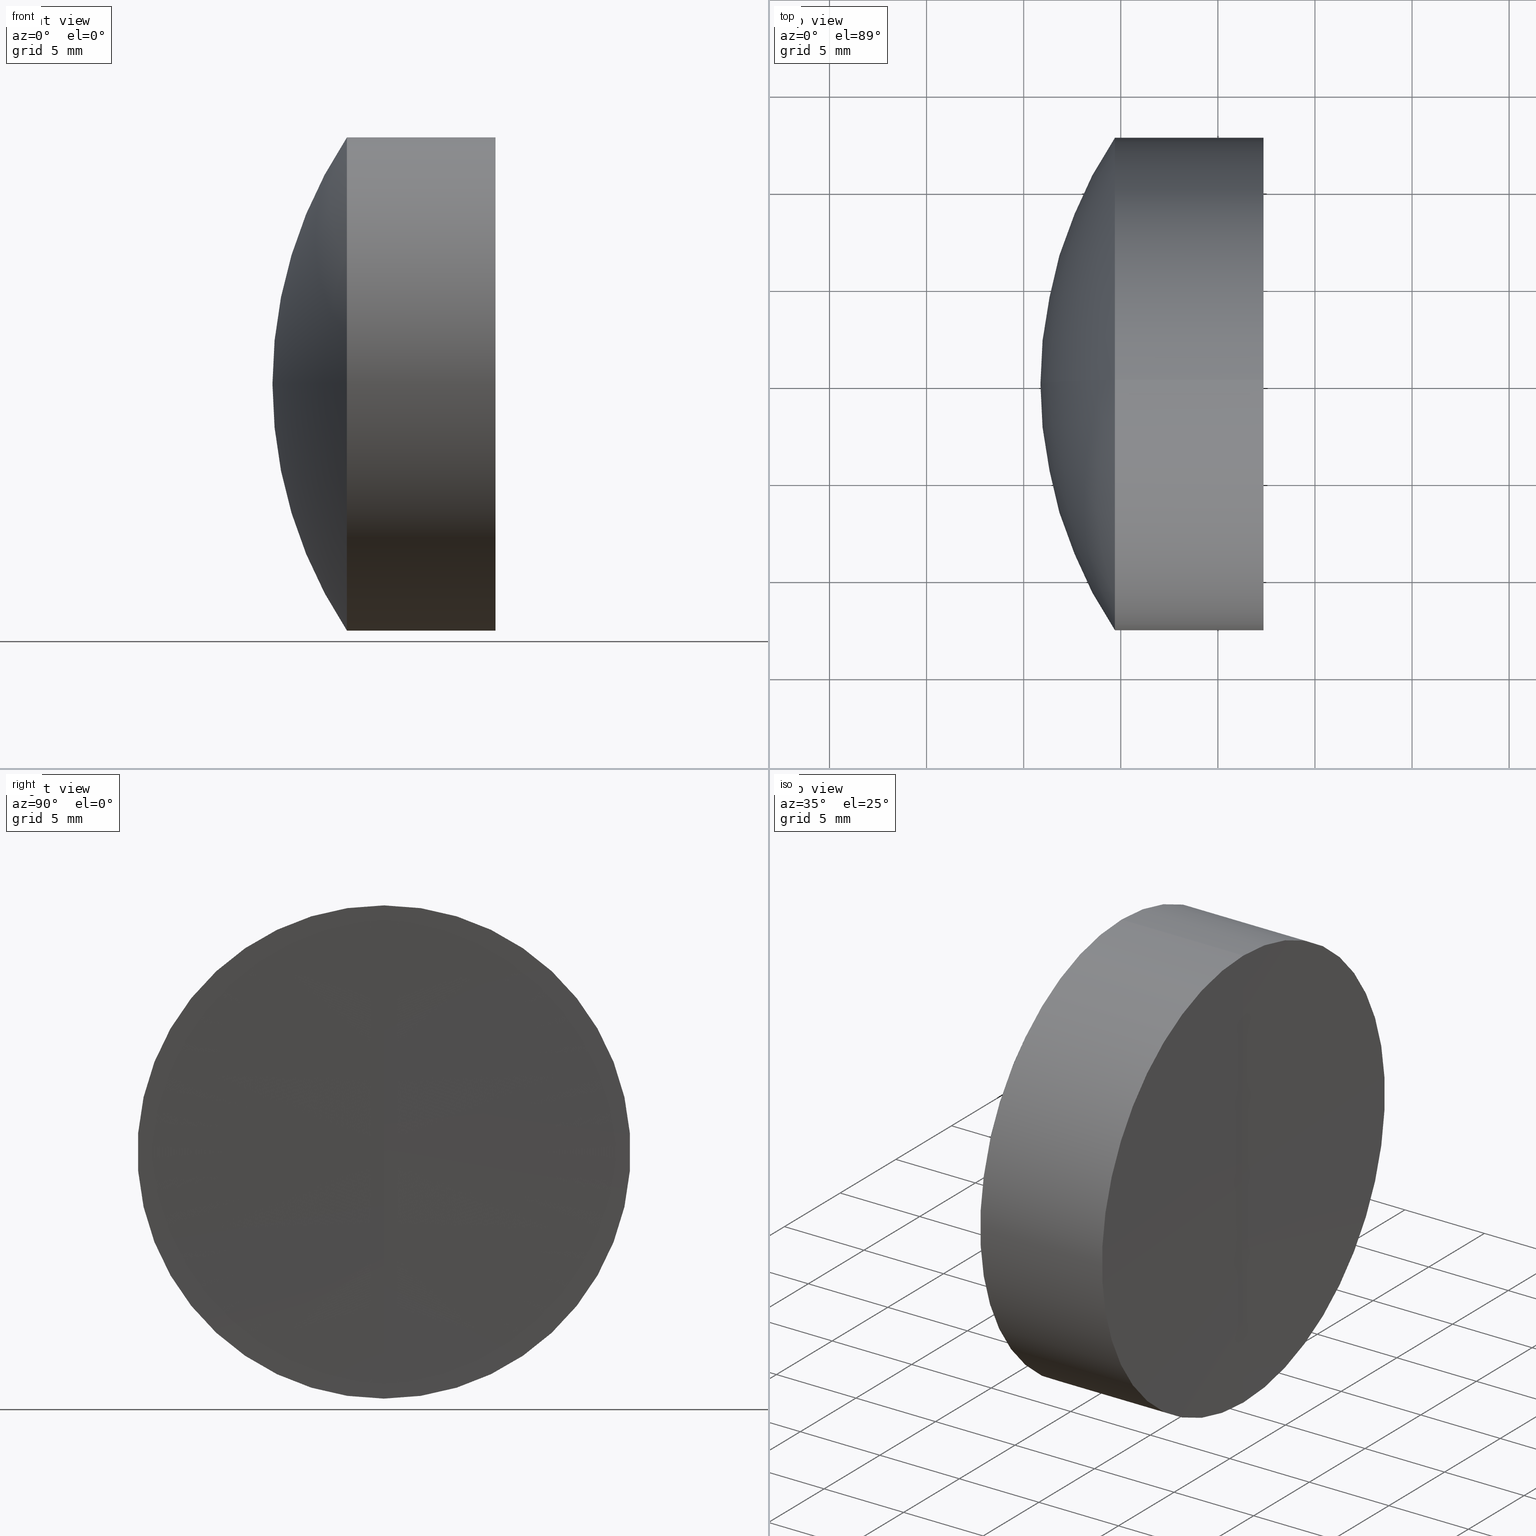
[diagram: canonical four-view strip — front | top / right | iso, engineering-drawing reading convention]
A machine part, canonical four-view strip (front | top / right | iso — engineering-drawing reading convention). The complete STEP part file that produces these views, byte-faithful:
ISO-10303-21;
HEADER;
FILE_DESCRIPTION (( 'STEP AP214' ),
    '1' );
FILE_NAME ('145161.STEP',
    '2019-06-07T04:54:16',
    ( 'user' ),
    ( '΢���й�' ),
    'SwSTEP 2.0',
    'SolidWorks 2016',
    '' );
FILE_SCHEMA (( 'AUTOMOTIVE_DESIGN' ));
ENDSEC;

DATA;
#1 = EDGE_CURVE ( 'NONE', #113, #292, #172, .T. ) ;
#2 = DIRECTION ( 'NONE',  ( -1.000000000000000000, -0.0000000000000000000, -0.0000000000000000000 ) ) ;
#3 = VERTEX_POINT ( 'NONE', #173 ) ;
#4 = EDGE_LOOP ( 'NONE', ( #311, #182, #58 ) ) ;
#5 = DIRECTION ( 'NONE',  ( 0.0000000000000000000, 0.0000000000000000000, -1.000000000000000000 ) ) ;
#6 = FACE_OUTER_BOUND ( 'NONE', #229, .T. ) ;
#7 = AXIS2_PLACEMENT_3D ( 'NONE', #257, #92, #170 ) ;
#8 = COLOUR_RGB ( '',1.000000000000000000, 1.000000000000000000, 1.000000000000000000 ) ;
#9 = CARTESIAN_POINT ( 'NONE',  ( 36.76664125472041200, 1.555301434917138400E-015, -12.69999999999999900 ) ) ;
#10 = CIRCLE ( 'NONE', #21, 12.69999999999999400 ) ;
#11 = DIRECTION ( 'NONE',  ( 0.0000000000000000000, 0.0000000000000000000, 1.000000000000000000 ) ) ;
#12 = ADVANCED_FACE ( 'NONE', ( #68 ), #208, .T. ) ;
#13 = CARTESIAN_POINT ( 'NONE',  ( 42.35364623093715200, 0.0000000000000000000, -12.69999999999743100 ) ) ;
#14 = DIRECTION ( 'NONE',  ( 0.0000000000000000000, -1.224646799147353200E-016, 1.000000000000000000 ) ) ;
#15 = CARTESIAN_POINT ( 'NONE',  ( 942.2640362142952900, 0.0000000000000000000, 0.0000000000000000000 ) ) ;
#16 = PRESENTATION_LAYER_ASSIGNMENT (  '', '', ( #43 ) ) ;
#17 = PRESENTATION_STYLE_ASSIGNMENT (( #75 ) ) ;
#18 = AXIS2_PLACEMENT_3D ( 'NONE', #181, #236, #74 ) ;
#19 = LINE ( 'NONE', #120, #314 ) ;
#20 = VERTEX_POINT ( 'NONE', #9 ) ;
#21 = AXIS2_PLACEMENT_3D ( 'NONE', #329, #95, #30 ) ;
#22 =( LENGTH_UNIT ( ) NAMED_UNIT ( * ) SI_UNIT ( .MILLI., .METRE. ) );
#23 = CARTESIAN_POINT ( 'NONE',  ( 942.2640362142952900, 0.0000000000000000000, 0.0000000000000000000 ) ) ;
#24 = AXIS2_PLACEMENT_3D ( 'NONE', #324, #153, #250 ) ;
#25 = CYLINDRICAL_SURFACE ( 'NONE', #53, 12.69999999999999900 ) ;
#26 = SURFACE_STYLE_USAGE ( .BOTH. , #239 ) ;
#27 = MECHANICAL_DESIGN_GEOMETRIC_PRESENTATION_REPRESENTATION (  '', ( #43 ), #67 ) ;
#28 =( LENGTH_UNIT ( ) NAMED_UNIT ( * ) SI_UNIT ( .MILLI., .METRE. ) );
#29 = PRESENTATION_STYLE_ASSIGNMENT (( #26 ) ) ;
#30 = DIRECTION ( 'NONE',  ( 0.0000000000000000000, 0.0000000000000000000, 1.000000000000000000 ) ) ;
#31 = ORIENTED_EDGE ( 'NONE', *, *, #117, .F. ) ;
#32 = EDGE_CURVE ( 'NONE', #310, #103, #217, .T. ) ;
#33 = DIRECTION ( 'NONE',  ( 0.0000000000000000000, 1.000000000000000000, -0.0000000000000000000 ) ) ;
#34 = DIRECTION ( 'NONE',  ( 0.0000000000000000000, -1.000000000000000000, -1.224646799147353200E-016 ) ) ;
#35 = CARTESIAN_POINT ( 'NONE',  ( 36.76664125472041200, 0.0000000000000000000, 0.0000000000000000000 ) ) ;
#36 = FACE_OUTER_BOUND ( 'NONE', #38, .T. ) ;
#37 = SURFACE_STYLE_FILL_AREA ( #54 ) ;
#38 = EDGE_LOOP ( 'NONE', ( #96, #147, #52, #42 ) ) ;
#39 = DIRECTION ( 'NONE',  ( -0.0000000000000000000, -1.000000000000000000, -0.0000000000000000000 ) ) ;
#40 = CIRCLE ( 'NONE', #190, 12.69999999999999200 ) ;
#41 = CIRCLE ( 'NONE', #206, 22.94000000000003000 ) ;
#42 = ORIENTED_EDGE ( 'NONE', *, *, #51, .F. ) ;
#43 = STYLED_ITEM ( 'NONE', ( #188 ), #146 ) ;
#44 = AXIS2_PLACEMENT_3D ( 'NONE', #326, #252, #174 ) ;
#45 = SPHERICAL_SURFACE ( 'NONE', #151, 23.66000000000000400 ) ;
#46 = EDGE_LOOP ( 'NONE', ( #274, #300, #191 ) ) ;
#47 = DIRECTION ( 'NONE',  ( 0.0000000000000000000, 0.0000000000000000000, 1.000000000000000000 ) ) ;
#48 = ORIENTED_EDGE ( 'NONE', *, *, #240, .F. ) ;
#49 = ORIENTED_EDGE ( 'NONE', *, *, #247, .T. ) ;
#50 = CARTESIAN_POINT ( 'NONE',  ( 34.70027742184829100, 0.0000000000000000000, 12.69999999999997600 ) ) ;
#51 = EDGE_CURVE ( 'NONE', #292, #316, #347, .T. ) ;
#52 = ORIENTED_EDGE ( 'NONE', *, *, #76, .F. ) ;
#53 = AXIS2_PLACEMENT_3D ( 'NONE', #83, #195, #183 ) ;
#54 = FILL_AREA_STYLE ('',( #270 ) ) ;
#55 = DIRECTION ( 'NONE',  ( 0.0000000000000000000, -1.224646799147353200E-016, 1.000000000000000000 ) ) ;
#56 = ORIENTED_EDGE ( 'NONE', *, *, #221, .F. ) ;
#57 = DIRECTION ( 'NONE',  ( 0.0000000000000000000, 1.224646799147353200E-016, -1.000000000000000000 ) ) ;
#58 = ORIENTED_EDGE ( 'NONE', *, *, #142, .F. ) ;
#59 = DIRECTION ( 'NONE',  ( 0.0000000000000000000, 0.0000000000000000000, 1.000000000000000000 ) ) ;
#60 =( GEOMETRIC_REPRESENTATION_CONTEXT ( 3 ) GLOBAL_UNCERTAINTY_ASSIGNED_CONTEXT ( ( #122 ) ) GLOBAL_UNIT_ASSIGNED_CONTEXT ( ( #185, #209, #338 ) ) REPRESENTATION_CONTEXT ( 'NONE', 'WORKASPACE' ) );
#61 = CYLINDRICAL_SURFACE ( 'NONE', #321, 12.69999999999999200 ) ;
#62 = DIRECTION ( 'NONE',  ( 0.0000000000000000000, 1.224646799147353500E-016, -1.000000000000000000 ) ) ;
#63 = CARTESIAN_POINT ( 'NONE',  ( 34.70027742184828400, 0.0000000000000000000, 0.0000000000000000000 ) ) ;
#64 = EDGE_CURVE ( 'NONE', #103, #310, #10, .T. ) ;
#65 = DIRECTION ( 'NONE',  ( 0.0000000000000000000, 0.0000000000000000000, 1.000000000000000000 ) ) ;
#66 = COLOUR_RGB ( '',1.000000000000000000, 1.000000000000000000, 1.000000000000000000 ) ;
#67 =( GEOMETRIC_REPRESENTATION_CONTEXT ( 3 ) GLOBAL_UNCERTAINTY_ASSIGNED_CONTEXT ( ( #345 ) ) GLOBAL_UNIT_ASSIGNED_CONTEXT ( ( #22, #344, #100 ) ) REPRESENTATION_CONTEXT ( 'NONE', 'WORKASPACE' ) );
#68 = FACE_OUTER_BOUND ( 'NONE', #71, .T. ) ;
#69 = ADVANCED_FACE ( 'NONE', ( #152 ), #213, .T. ) ;
#70 =( NAMED_UNIT ( * ) SI_UNIT ( $, .STERADIAN. ) SOLID_ANGLE_UNIT ( ) );
#71 = EDGE_LOOP ( 'NONE', ( #56, #285, #133, #154 ) ) ;
#72 = ADVANCED_FACE ( 'NONE', ( #85 ), #94, .F. ) ;
#73 = EDGE_LOOP ( 'NONE', ( #165, #337, #318 ) ) ;
#74 = DIRECTION ( 'NONE',  ( 0.0000000000000000000, 0.0000000000000000000, 1.000000000000000000 ) ) ;
#75 = SURFACE_STYLE_USAGE ( .BOTH. , #268 ) ;
#76 = EDGE_CURVE ( 'NONE', #316, #196, #284, .T. ) ;
#77 = LINE ( 'NONE', #327, #230 ) ;
#78 = PRODUCT_CONTEXT ( 'NONE', #242, 'mechanical' ) ;
#79 = ORIENTED_EDGE ( 'NONE', *, *, #119, .F. ) ;
#80 = ORIENTED_EDGE ( 'NONE', *, *, #264, .F. ) ;
#81 = FILL_AREA_STYLE_COLOUR ( '', #245 ) ;
#82 = CARTESIAN_POINT ( 'NONE',  ( 942.2640362142952900, 0.0000000000000000000, 0.0000000000000000000 ) ) ;
#83 = CARTESIAN_POINT ( 'NONE',  ( -0.8160621761658039000, 0.0000000000000000000, 0.0000000000000000000 ) ) ;
#84 =( NAMED_UNIT ( * ) PLANE_ANGLE_UNIT ( ) SI_UNIT ( $, .RADIAN. ) );
#85 = FACE_OUTER_BOUND ( 'NONE', #323, .T. ) ;
#86 = EDGE_CURVE ( 'NONE', #20, #196, #161, .T. ) ;
#87 = ORIENTED_EDGE ( 'NONE', *, *, #32, .T. ) ;
#88 = PRESENTATION_LAYER_ASSIGNMENT (  '', '', ( #123 ) ) ;
#89 = EDGE_LOOP ( 'NONE', ( #330, #126, #157 ) ) ;
#90 = ORIENTED_EDGE ( 'NONE', *, *, #86, .F. ) ;
#91 = CARTESIAN_POINT ( 'NONE',  ( -0.8160621761658039000, 0.0000000000000000000, 12.69999999999999900 ) ) ;
#92 = DIRECTION ( 'NONE',  ( 0.0000000000000000000, 1.000000000000000000, 0.0000000000000000000 ) ) ;
#93 = SURFACE_STYLE_FILL_AREA ( #336 ) ;
#94 = SPHERICAL_SURFACE ( 'NONE', #234, 23.66000000000000000 ) ;
#95 = DIRECTION ( 'NONE',  ( -1.000000000000000000, -0.0000000000000000000, -0.0000000000000000000 ) ) ;
#96 = ORIENTED_EDGE ( 'NONE', *, *, #105, .T. ) ;
#97 = ADVANCED_FACE ( 'NONE', ( #167 ), #296, .F. ) ;
#98 = DIRECTION ( 'NONE',  ( -0.0000000000000000000, 1.000000000000000000, 1.224646799147353200E-016 ) ) ;
#99 = CLOSED_SHELL ( 'NONE', ( #69, #128, #178, #313, #331, #201 ) ) ;
#100 =( NAMED_UNIT ( * ) SI_UNIT ( $, .STERADIAN. ) SOLID_ANGLE_UNIT ( ) );
#101 = VECTOR ( 'NONE', #127, 1000.000000000000000 ) ;
#102 = DIRECTION ( 'NONE',  ( 1.000000000000000000, 0.0000000000000000000, 0.0000000000000000000 ) ) ;
#103 = VERTEX_POINT ( 'NONE', #306 ) ;
#104 = CARTESIAN_POINT ( 'NONE',  ( 40.46403621429545400, 0.0000000000000000000, -1.448757163391319000E-015 ) ) ;
#105 = EDGE_CURVE ( 'NONE', #292, #20, #253, .T. ) ;
#106 = CIRCLE ( 'NONE', #169, 23.66000000000000000 ) ;
#107 = VERTEX_POINT ( 'NONE', #273 ) ;
#108 = AXIS2_PLACEMENT_3D ( 'NONE', #82, #124, #5 ) ;
#109 = CARTESIAN_POINT ( 'NONE',  ( -0.5519199926577972300, 0.0000000000000000000, 0.0000000000000000000 ) ) ;
#110 = FACE_OUTER_BOUND ( 'NONE', #4, .T. ) ;
#111 = APPLICATION_PROTOCOL_DEFINITION ( 'draft international standard', 'automotive_design', 1998, #242 ) ;
#112 = ORIENTED_EDGE ( 'NONE', *, *, #51, .T. ) ;
#113 = VERTEX_POINT ( 'NONE', #303 ) ;
#114 = AXIS2_PLACEMENT_3D ( 'NONE', #295, #140, #102 ) ;
#115 = SURFACE_STYLE_USAGE ( .BOTH. , #163 ) ;
#116 = CARTESIAN_POINT ( 'NONE',  ( 34.70027742184829100, 1.555301434917135900E-015, -12.69999999999997600 ) ) ;
#117 = EDGE_CURVE ( 'NONE', #3, #310, #19, .T. ) ;
#118 = CIRCLE ( 'NONE', #251, 899.9999999999997700 ) ;
#119 = EDGE_CURVE ( 'NONE', #316, #107, #41, .T. ) ;
#120 = CARTESIAN_POINT ( 'NONE',  ( -0.5519199926577972300, 0.0000000000000000000, 12.69999999999999200 ) ) ;
#121 = CARTESIAN_POINT ( 'NONE',  ( -0.5519199926577972300, 0.0000000000000000000, 0.0000000000000000000 ) ) ;
#122 = UNCERTAINTY_MEASURE_WITH_UNIT (LENGTH_MEASURE( 1.000000000000000100E-005 ), #185, 'distance_accuracy_value', 'NONE');
#123 = STYLED_ITEM ( 'NONE', ( #29 ), #232 ) ;
#124 = DIRECTION ( 'NONE',  ( -0.0000000000000000000, -1.000000000000000000, -0.0000000000000000000 ) ) ;
#125 = DIRECTION ( 'NONE',  ( -1.000000000000000000, -0.0000000000000000000, -0.0000000000000000000 ) ) ;
#126 = ORIENTED_EDGE ( 'NONE', *, *, #240, .T. ) ;
#127 = DIRECTION ( 'NONE',  ( -1.000000000000000000, -0.0000000000000000000, -0.0000000000000000000 ) ) ;
#128 = ADVANCED_FACE ( 'NONE', ( #36 ), #320, .T. ) ;
#129 = VERTEX_POINT ( 'NONE', #13 ) ;
#130 = PRODUCT_DEFINITION ( 'δ֪', '', #139, #291 ) ;
#131 = EDGE_CURVE ( 'NONE', #196, #107, #267, .T. ) ;
#132 = DIRECTION ( 'NONE',  ( 0.0000000000000000000, 0.0000000000000000000, 1.000000000000000000 ) ) ;
#133 = ORIENTED_EDGE ( 'NONE', *, *, #117, .T. ) ;
#134 = EDGE_CURVE ( 'NONE', #176, #310, #106, .T. ) ;
#135 = PRODUCT_DEFINITION_SHAPE ( 'NONE', 'NONE',  #130 ) ;
#136 = CARTESIAN_POINT ( 'NONE',  ( 16.80403621429545100, 0.0000000000000000000, 0.0000000000000000000 ) ) ;
#137 = FILL_AREA_STYLE_COLOUR ( '', #66 ) ;
#138 = DIRECTION ( 'NONE',  ( 0.0000000000000000000, 0.0000000000000000000, 1.000000000000000000 ) ) ;
#139 = PRODUCT_DEFINITION_FORMATION_WITH_SPECIFIED_SOURCE ( '�κ�', '', #342, .NOT_KNOWN. ) ;
#140 = DIRECTION ( 'NONE',  ( 0.0000000000000000000, 0.0000000000000000000, 1.000000000000000000 ) ) ;
#141 = APPLICATION_PROTOCOL_DEFINITION ( 'draft international standard', 'automotive_design', 1998, #262 ) ;
#142 = EDGE_CURVE ( 'NONE', #129, #238, #179, .T. ) ;
#143 = CARTESIAN_POINT ( 'NONE',  ( 16.80403621429545100, 0.0000000000000000000, 0.0000000000000000000 ) ) ;
#144 = PRODUCT_RELATED_PRODUCT_CATEGORY ( 'part', '', ( #342 ) ) ;
#145 = DIRECTION ( 'NONE',  ( -1.000000000000000000, -0.0000000000000000000, -0.0000000000000000000 ) ) ;
#146 = ADVANCED_BREP_SHAPE_REPRESENTATION ( '145161', ( #232, #283, #114 ), #60 ) ;
#147 = ORIENTED_EDGE ( 'NONE', *, *, #86, .T. ) ;
#148 = DIRECTION ( 'NONE',  ( 0.0000000000000000000, 0.0000000000000000000, 1.000000000000000000 ) ) ;
#149 = DIRECTION ( 'NONE',  ( -0.0000000000000000000, 1.000000000000000000, 1.224646799147353200E-016 ) ) ;
#150 = DIRECTION ( 'NONE',  ( -1.000000000000000000, -0.0000000000000000000, -0.0000000000000000000 ) ) ;
#151 = AXIS2_PLACEMENT_3D ( 'NONE', #143, #301, #215 ) ;
#152 = FACE_OUTER_BOUND ( 'NONE', #171, .T. ) ;
#153 = DIRECTION ( 'NONE',  ( -1.000000000000000000, -0.0000000000000000000, -0.0000000000000000000 ) ) ;
#154 = ORIENTED_EDGE ( 'NONE', *, *, #64, .F. ) ;
#155 = ORIENTED_EDGE ( 'NONE', *, *, #221, .T. ) ;
#156 = AXIS2_PLACEMENT_3D ( 'NONE', #63, #145, #302 ) ;
#157 = ORIENTED_EDGE ( 'NONE', *, *, #64, .T. ) ;
#158 = DIRECTION ( 'NONE',  ( -1.000000000000000000, -0.0000000000000000000, -0.0000000000000000000 ) ) ;
#159 = AXIS2_PLACEMENT_3D ( 'NONE', #269, #33, #346 ) ;
#160 = CARTESIAN_POINT ( 'NONE',  ( 42.26403621429553000, 0.0000000000000000000, -5.510910596163088600E-014 ) ) ;
#161 = LINE ( 'NONE', #223, #101 ) ;
#162 = ORIENTED_EDGE ( 'NONE', *, *, #76, .T. ) ;
#163 = SURFACE_SIDE_STYLE ('',( #37 ) ) ;
#164 = CARTESIAN_POINT ( 'NONE',  ( 16.80403621429545100, 0.0000000000000000000, 0.0000000000000000000 ) ) ;
#165 = ORIENTED_EDGE ( 'NONE', *, *, #275, .F. ) ;
#166 = ORIENTED_EDGE ( 'NONE', *, *, #105, .F. ) ;
#167 = FACE_OUTER_BOUND ( 'NONE', #46, .T. ) ;
#168 = EDGE_LOOP ( 'NONE', ( #90, #49, #112, #80 ) ) ;
#169 = AXIS2_PLACEMENT_3D ( 'NONE', #164, #278, #57 ) ;
#170 = DIRECTION ( 'NONE',  ( 0.0000000000000000000, 0.0000000000000000000, 1.000000000000000000 ) ) ;
#171 = EDGE_LOOP ( 'NONE', ( #341, #224, #166 ) ) ;
#172 = CIRCLE ( 'NONE', #44, 23.66000000000000400 ) ;
#173 = CARTESIAN_POINT ( 'NONE',  ( 42.35364623093715200, -1.555301434916824100E-015, 12.69999999999743100 ) ) ;
#174 = DIRECTION ( 'NONE',  ( 0.0000000000000000000, 0.0000000000000000000, -1.000000000000000000 ) ) ;
#175 = CIRCLE ( 'NONE', #220, 12.69999999999999900 ) ;
#176 = VERTEX_POINT ( 'NONE', #104 ) ;
#177 = DIRECTION ( 'NONE',  ( 0.0000000000000000000, 1.000000000000000000, 0.0000000000000000000 ) ) ;
#178 = ADVANCED_FACE ( 'NONE', ( #249 ), #322, .T. ) ;
#179 = CIRCLE ( 'NONE', #159, 899.9999999999997700 ) ;
#180 = MECHANICAL_DESIGN_GEOMETRIC_PRESENTATION_REPRESENTATION (  '', ( #123 ), #197 ) ;
#181 = CARTESIAN_POINT ( 'NONE',  ( 16.80403621429545100, 0.0000000000000000000, 0.0000000000000000000 ) ) ;
#182 = ORIENTED_EDGE ( 'NONE', *, *, #219, .T. ) ;
#183 = DIRECTION ( 'NONE',  ( 0.0000000000000000000, 0.0000000000000000000, 1.000000000000000000 ) ) ;
#184 = CIRCLE ( 'NONE', #258, 12.69999999999999200 ) ;
#185 =( LENGTH_UNIT ( ) NAMED_UNIT ( * ) SI_UNIT ( .MILLI., .METRE. ) );
#186 = CARTESIAN_POINT ( 'NONE',  ( 53.80403621429545800, 0.0000000000000000000, -4.336808689942017700E-016 ) ) ;
#187 = CARTESIAN_POINT ( 'NONE',  ( 34.70027742184828400, 0.0000000000000000000, 0.0000000000000000000 ) ) ;
#188 = PRESENTATION_STYLE_ASSIGNMENT (( #115 ) ) ;
#189 = SURFACE_STYLE_FILL_AREA ( #286 ) ;
#190 = AXIS2_PLACEMENT_3D ( 'NONE', #266, #235, #47 ) ;
#191 = ORIENTED_EDGE ( 'NONE', *, *, #142, .T. ) ;
#192 = UNCERTAINTY_MEASURE_WITH_UNIT (LENGTH_MEASURE( 1.000000000000000100E-005 ), #298, 'distance_accuracy_value', 'NONE');
#193 = CARTESIAN_POINT ( 'NONE',  ( 36.76664125472041200, 0.0000000000000000000, 0.0000000000000000000 ) ) ;
#194 = DIRECTION ( 'NONE',  ( 0.0000000000000000000, 0.0000000000000000000, 1.000000000000000000 ) ) ;
#195 = DIRECTION ( 'NONE',  ( -1.000000000000000000, -0.0000000000000000000, -0.0000000000000000000 ) ) ;
#196 = VERTEX_POINT ( 'NONE', #116 ) ;
#197 =( GEOMETRIC_REPRESENTATION_CONTEXT ( 3 ) GLOBAL_UNCERTAINTY_ASSIGNED_CONTEXT ( ( #305 ) ) GLOBAL_UNIT_ASSIGNED_CONTEXT ( ( #28, #84, #289 ) ) REPRESENTATION_CONTEXT ( 'NONE', 'WORKASPACE' ) );
#198 = SPHERICAL_SURFACE ( 'NONE', #200, 22.94000000000003000 ) ;
#199 = ORIENTED_EDGE ( 'NONE', *, *, #32, .F. ) ;
#200 = AXIS2_PLACEMENT_3D ( 'NONE', #186, #218, #138 ) ;
#201 = ADVANCED_FACE ( 'NONE', ( #287 ), #45, .T. ) ;
#202 = CIRCLE ( 'NONE', #241, 12.69999999999999900 ) ;
#203 = EDGE_LOOP ( 'NONE', ( #333, #237, #254 ) ) ;
#204 = STYLED_ITEM ( 'NONE', ( #17 ), #283 ) ;
#205 = DIRECTION ( 'NONE',  ( 0.0000000000000000000, 0.0000000000000000000, 1.000000000000000000 ) ) ;
#206 = AXIS2_PLACEMENT_3D ( 'NONE', #299, #279, #328 ) ;
#207 = CARTESIAN_POINT ( 'NONE',  ( 16.80403621429545100, 0.0000000000000000000, 0.0000000000000000000 ) ) ;
#208 = CYLINDRICAL_SURFACE ( 'NONE', #297, 12.69999999999999200 ) ;
#209 =( NAMED_UNIT ( * ) PLANE_ANGLE_UNIT ( ) SI_UNIT ( $, .RADIAN. ) );
#210 = EDGE_CURVE ( 'NONE', #129, #3, #184, .T. ) ;
#211 = EDGE_LOOP ( 'NONE', ( #162, #216, #79 ) ) ;
#212 = DIRECTION ( 'NONE',  ( -1.000000000000000000, -0.0000000000000000000, -0.0000000000000000000 ) ) ;
#213 = SPHERICAL_SURFACE ( 'NONE', #334, 23.66000000000000400 ) ;
#214 = MECHANICAL_DESIGN_GEOMETRIC_PRESENTATION_REPRESENTATION (  '', ( #204 ), #265 ) ;
#215 = DIRECTION ( 'NONE',  ( 0.0000000000000000000, 0.0000000000000000000, 1.000000000000000000 ) ) ;
#216 = ORIENTED_EDGE ( 'NONE', *, *, #131, .T. ) ;
#217 = CIRCLE ( 'NONE', #24, 12.69999999999999400 ) ;
#218 = DIRECTION ( 'NONE',  ( 0.0000000000000000000, 1.000000000000000000, 0.0000000000000000000 ) ) ;
#219 = EDGE_CURVE ( 'NONE', #3, #238, #118, .T. ) ;
#220 = AXIS2_PLACEMENT_3D ( 'NONE', #193, #125, #11 ) ;
#221 = EDGE_CURVE ( 'NONE', #129, #103, #77, .T. ) ;
#222 = CIRCLE ( 'NONE', #18, 23.66000000000000000 ) ;
#223 = CARTESIAN_POINT ( 'NONE',  ( -0.8160621761658039000, 1.555301434917138400E-015, -12.69999999999999900 ) ) ;
#224 = ORIENTED_EDGE ( 'NONE', *, *, #275, .T. ) ;
#225 = AXIS2_PLACEMENT_3D ( 'NONE', #35, #2, #65 ) ;
#226 = SPHERICAL_SURFACE ( 'NONE', #315, 899.9999999999997700 ) ;
#227 = CARTESIAN_POINT ( 'NONE',  ( 16.80403621429545100, 0.0000000000000000000, 0.0000000000000000000 ) ) ;
#228 = ADVANCED_FACE ( 'NONE', ( #110 ), #226, .F. ) ;
#229 = EDGE_LOOP ( 'NONE', ( #290, #155, #199, #31 ) ) ;
#230 = VECTOR ( 'NONE', #282, 1000.000000000000000 ) ;
#231 = CARTESIAN_POINT ( 'NONE',  ( 36.76664125472041200, 0.0000000000000000000, 12.69999999999999900 ) ) ;
#232 = MANIFOLD_SOLID_BREP ( '��ת1', #99 ) ;
#233 = DIRECTION ( 'NONE',  ( -0.0000000000000000000, -1.000000000000000000, -0.0000000000000000000 ) ) ;
#234 = AXIS2_PLACEMENT_3D ( 'NONE', #248, #39, #276 ) ;
#235 = DIRECTION ( 'NONE',  ( -1.000000000000000000, -0.0000000000000000000, -0.0000000000000000000 ) ) ;
#236 = DIRECTION ( 'NONE',  ( 0.0000000000000000000, 1.000000000000000000, -0.0000000000000000000 ) ) ;
#237 = ORIENTED_EDGE ( 'NONE', *, *, #264, .T. ) ;
#238 = VERTEX_POINT ( 'NONE', #160 ) ;
#239 = SURFACE_SIDE_STYLE ('',( #189 ) ) ;
#240 = EDGE_CURVE ( 'NONE', #176, #103, #222, .T. ) ;
#241 = AXIS2_PLACEMENT_3D ( 'NONE', #187, #158, #244 ) ;
#242 = APPLICATION_CONTEXT ( 'automotive_design' ) ;
#243 = DIRECTION ( 'NONE',  ( 0.0000000000000000000, 0.0000000000000000000, -1.000000000000000000 ) ) ;
#244 = DIRECTION ( 'NONE',  ( 0.0000000000000000000, 0.0000000000000000000, 1.000000000000000000 ) ) ;
#245 = COLOUR_RGB ( '',1.000000000000000000, 1.000000000000000000, 1.000000000000000000 ) ;
#246 = ORIENTED_EDGE ( 'NONE', *, *, #134, .T. ) ;
#247 = EDGE_CURVE ( 'NONE', #20, #292, #175, .T. ) ;
#248 = CARTESIAN_POINT ( 'NONE',  ( 16.80403621429545100, 0.0000000000000000000, 0.0000000000000000000 ) ) ;
#249 = FACE_OUTER_BOUND ( 'NONE', #211, .T. ) ;
#250 = DIRECTION ( 'NONE',  ( 0.0000000000000000000, 0.0000000000000000000, 1.000000000000000000 ) ) ;
#251 = AXIS2_PLACEMENT_3D ( 'NONE', #15, #34, #62 ) ;
#252 = DIRECTION ( 'NONE',  ( 0.0000000000000000000, -1.000000000000000000, 0.0000000000000000000 ) ) ;
#253 = CIRCLE ( 'NONE', #225, 12.69999999999999900 ) ;
#254 = ORIENTED_EDGE ( 'NONE', *, *, #119, .T. ) ;
#255 = CARTESIAN_POINT ( 'NONE',  ( 36.76664125472041200, -1.555301434917138000E-015, 12.69999999999999400 ) ) ;
#256 = CLOSED_SHELL ( 'NONE', ( #281, #228, #72, #261, #97, #12 ) ) ;
#257 = CARTESIAN_POINT ( 'NONE',  ( 53.80403621429545800, 0.0000000000000000000, -4.336808689942017700E-016 ) ) ;
#258 = AXIS2_PLACEMENT_3D ( 'NONE', #288, #309, #205 ) ;
#259 = FACE_OUTER_BOUND ( 'NONE', #168, .T. ) ;
#260 = PRESENTATION_LAYER_ASSIGNMENT (  '', '', ( #204 ) ) ;
#261 = ADVANCED_FACE ( 'NONE', ( #317 ), #332, .F. ) ;
#262 = APPLICATION_CONTEXT ( 'automotive_design' ) ;
#263 = AXIS2_PLACEMENT_3D ( 'NONE', #207, #233, #307 ) ;
#264 = EDGE_CURVE ( 'NONE', #196, #316, #202, .T. ) ;
#265 =( GEOMETRIC_REPRESENTATION_CONTEXT ( 3 ) GLOBAL_UNCERTAINTY_ASSIGNED_CONTEXT ( ( #192 ) ) GLOBAL_UNIT_ASSIGNED_CONTEXT ( ( #298, #339, #70 ) ) REPRESENTATION_CONTEXT ( 'NONE', 'WORKASPACE' ) );
#266 = CARTESIAN_POINT ( 'NONE',  ( 42.35364623093713000, 0.0000000000000000000, 0.0000000000000000000 ) ) ;
#267 = CIRCLE ( 'NONE', #294, 22.94000000000003000 ) ;
#268 = SURFACE_SIDE_STYLE ('',( #93 ) ) ;
#269 = CARTESIAN_POINT ( 'NONE',  ( 942.2640362142952900, 0.0000000000000000000, 0.0000000000000000000 ) ) ;
#270 = FILL_AREA_STYLE_COLOUR ( '', #8 ) ;
#271 = DIRECTION ( 'NONE',  ( -0.0000000000000000000, -1.000000000000000000, -0.0000000000000000000 ) ) ;
#272 = SHAPE_DEFINITION_REPRESENTATION ( #135, #146 ) ;
#273 = CARTESIAN_POINT ( 'NONE',  ( 30.86403621429542500, 0.0000000000000000000, 9.709890096278142500E-016 ) ) ;
#274 = ORIENTED_EDGE ( 'NONE', *, *, #219, .F. ) ;
#275 = EDGE_CURVE ( 'NONE', #113, #20, #340, .T. ) ;
#276 = DIRECTION ( 'NONE',  ( 0.0000000000000000000, 0.0000000000000000000, -1.000000000000000000 ) ) ;
#277 = CARTESIAN_POINT ( 'NONE',  ( -0.8160621761658039000, 0.0000000000000000000, 0.0000000000000000000 ) ) ;
#278 = DIRECTION ( 'NONE',  ( 0.0000000000000000000, -1.000000000000000000, -1.224646799147353200E-016 ) ) ;
#279 = DIRECTION ( 'NONE',  ( 0.0000000000000000000, -1.000000000000000000, 0.0000000000000000000 ) ) ;
#280 = VECTOR ( 'NONE', #150, 1000.000000000000000 ) ;
#281 = ADVANCED_FACE ( 'NONE', ( #6 ), #61, .T. ) ;
#282 = DIRECTION ( 'NONE',  ( -1.000000000000000000, -0.0000000000000000000, -0.0000000000000000000 ) ) ;
#283 = MANIFOLD_SOLID_BREP ( '��ת2', #256 ) ;
#284 = CIRCLE ( 'NONE', #156, 12.69999999999999900 ) ;
#285 = ORIENTED_EDGE ( 'NONE', *, *, #210, .T. ) ;
#286 = FILL_AREA_STYLE ('',( #81 ) ) ;
#287 = FACE_OUTER_BOUND ( 'NONE', #73, .T. ) ;
#288 = CARTESIAN_POINT ( 'NONE',  ( 42.35364623093713000, 0.0000000000000000000, 0.0000000000000000000 ) ) ;
#289 =( NAMED_UNIT ( * ) SI_UNIT ( $, .STERADIAN. ) SOLID_ANGLE_UNIT ( ) );
#290 = ORIENTED_EDGE ( 'NONE', *, *, #325, .T. ) ;
#291 = PRODUCT_DEFINITION_CONTEXT ( 'detailed design', #262, 'design' ) ;
#292 = VERTEX_POINT ( 'NONE', #231 ) ;
#293 = DIRECTION ( 'NONE',  ( -1.000000000000000000, -0.0000000000000000000, -0.0000000000000000000 ) ) ;
#294 = AXIS2_PLACEMENT_3D ( 'NONE', #312, #149, #14 ) ;
#295 = CARTESIAN_POINT ( 'NONE',  ( 0.0000000000000000000, 0.0000000000000000000, 0.0000000000000000000 ) ) ;
#296 = SPHERICAL_SURFACE ( 'NONE', #108, 899.9999999999997700 ) ;
#297 = AXIS2_PLACEMENT_3D ( 'NONE', #121, #293, #148 ) ;
#298 =( LENGTH_UNIT ( ) NAMED_UNIT ( * ) SI_UNIT ( .MILLI., .METRE. ) );
#299 = CARTESIAN_POINT ( 'NONE',  ( 53.80403621429545800, 0.0000000000000000000, -4.336808689942017700E-016 ) ) ;
#300 = ORIENTED_EDGE ( 'NONE', *, *, #210, .F. ) ;
#301 = DIRECTION ( 'NONE',  ( 0.0000000000000000000, 1.000000000000000000, 0.0000000000000000000 ) ) ;
#302 = DIRECTION ( 'NONE',  ( 0.0000000000000000000, 0.0000000000000000000, 1.000000000000000000 ) ) ;
#303 = CARTESIAN_POINT ( 'NONE',  ( 40.46403621429545400, 0.0000000000000000000, 1.448757163391319200E-015 ) ) ;
#304 = AXIS2_PLACEMENT_3D ( 'NONE', #277, #308, #194 ) ;
#305 = UNCERTAINTY_MEASURE_WITH_UNIT (LENGTH_MEASURE( 1.000000000000000100E-005 ), #28, 'distance_accuracy_value', 'NONE');
#306 = CARTESIAN_POINT ( 'NONE',  ( 36.76664125472041200, 0.0000000000000000000, -12.69999999999999400 ) ) ;
#307 = DIRECTION ( 'NONE',  ( 0.0000000000000000000, 0.0000000000000000000, -1.000000000000000000 ) ) ;
#308 = DIRECTION ( 'NONE',  ( -1.000000000000000000, -0.0000000000000000000, -0.0000000000000000000 ) ) ;
#309 = DIRECTION ( 'NONE',  ( -1.000000000000000000, -0.0000000000000000000, -0.0000000000000000000 ) ) ;
#310 = VERTEX_POINT ( 'NONE', #255 ) ;
#311 = ORIENTED_EDGE ( 'NONE', *, *, #325, .F. ) ;
#312 = CARTESIAN_POINT ( 'NONE',  ( 53.80403621429545800, 0.0000000000000000000, -4.336808689942017700E-016 ) ) ;
#313 = ADVANCED_FACE ( 'NONE', ( #335 ), #198, .T. ) ;
#314 = VECTOR ( 'NONE', #212, 1000.000000000000000 ) ;
#315 = AXIS2_PLACEMENT_3D ( 'NONE', #23, #271, #243 ) ;
#316 = VERTEX_POINT ( 'NONE', #50 ) ;
#317 = FACE_OUTER_BOUND ( 'NONE', #89, .T. ) ;
#318 = ORIENTED_EDGE ( 'NONE', *, *, #247, .F. ) ;
#319 = DIRECTION ( 'NONE',  ( -1.000000000000000000, -0.0000000000000000000, -0.0000000000000000000 ) ) ;
#320 = CYLINDRICAL_SURFACE ( 'NONE', #304, 12.69999999999999900 ) ;
#321 = AXIS2_PLACEMENT_3D ( 'NONE', #109, #319, #132 ) ;
#322 = SPHERICAL_SURFACE ( 'NONE', #7, 22.94000000000003000 ) ;
#323 = EDGE_LOOP ( 'NONE', ( #48, #246, #87 ) ) ;
#324 = CARTESIAN_POINT ( 'NONE',  ( 36.76664125472041200, 0.0000000000000000000, 0.0000000000000000000 ) ) ;
#325 = EDGE_CURVE ( 'NONE', #3, #129, #40, .T. ) ;
#326 = CARTESIAN_POINT ( 'NONE',  ( 16.80403621429545100, 0.0000000000000000000, 0.0000000000000000000 ) ) ;
#327 = CARTESIAN_POINT ( 'NONE',  ( -0.5519199926577972300, 1.555301434917137800E-015, -12.69999999999999200 ) ) ;
#328 = DIRECTION ( 'NONE',  ( 0.0000000000000000000, 0.0000000000000000000, -1.000000000000000000 ) ) ;
#329 = CARTESIAN_POINT ( 'NONE',  ( 36.76664125472041200, 0.0000000000000000000, 0.0000000000000000000 ) ) ;
#330 = ORIENTED_EDGE ( 'NONE', *, *, #134, .F. ) ;
#331 = ADVANCED_FACE ( 'NONE', ( #259 ), #25, .T. ) ;
#332 = SPHERICAL_SURFACE ( 'NONE', #263, 23.66000000000000000 ) ;
#333 = ORIENTED_EDGE ( 'NONE', *, *, #131, .F. ) ;
#334 = AXIS2_PLACEMENT_3D ( 'NONE', #227, #177, #59 ) ;
#335 = FACE_OUTER_BOUND ( 'NONE', #203, .T. ) ;
#336 = FILL_AREA_STYLE ('',( #137 ) ) ;
#337 = ORIENTED_EDGE ( 'NONE', *, *, #1, .T. ) ;
#338 =( NAMED_UNIT ( * ) SI_UNIT ( $, .STERADIAN. ) SOLID_ANGLE_UNIT ( ) );
#339 =( NAMED_UNIT ( * ) PLANE_ANGLE_UNIT ( ) SI_UNIT ( $, .RADIAN. ) );
#340 = CIRCLE ( 'NONE', #343, 23.66000000000000400 ) ;
#341 = ORIENTED_EDGE ( 'NONE', *, *, #1, .F. ) ;
#342 = PRODUCT ( '145161', '145161', '', ( #78 ) ) ;
#343 = AXIS2_PLACEMENT_3D ( 'NONE', #136, #98, #55 ) ;
#344 =( NAMED_UNIT ( * ) PLANE_ANGLE_UNIT ( ) SI_UNIT ( $, .RADIAN. ) );
#345 = UNCERTAINTY_MEASURE_WITH_UNIT (LENGTH_MEASURE( 1.000000000000000100E-005 ), #22, 'distance_accuracy_value', 'NONE');
#346 = DIRECTION ( 'NONE',  ( 0.0000000000000000000, 0.0000000000000000000, 1.000000000000000000 ) ) ;
#347 = LINE ( 'NONE', #91, #280 ) ;
ENDSEC;
END-ISO-10303-21;
